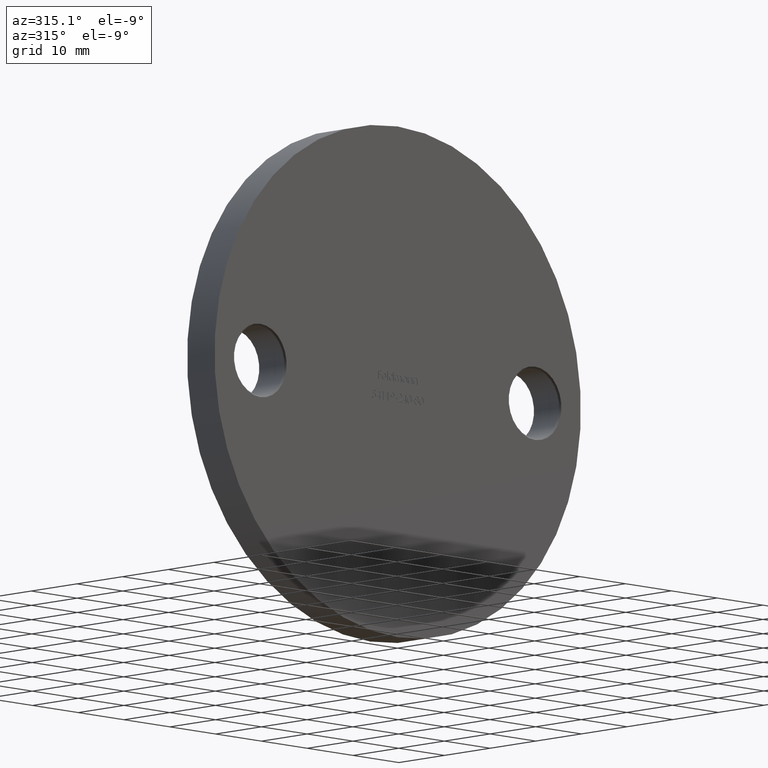
[diagram: clean part render]
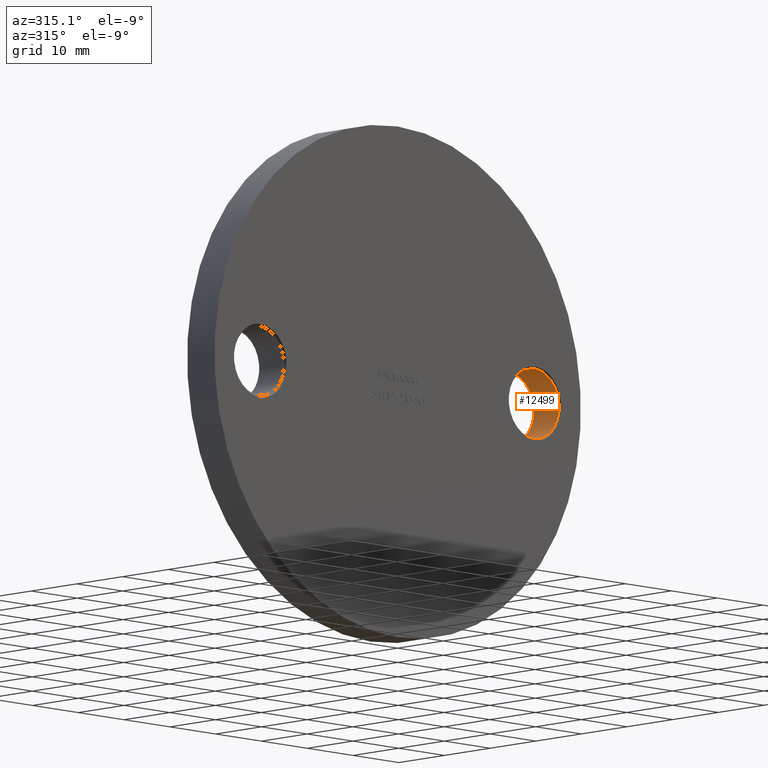
[diagram: same view with one face highlighted and labeled with its STEP entity id]
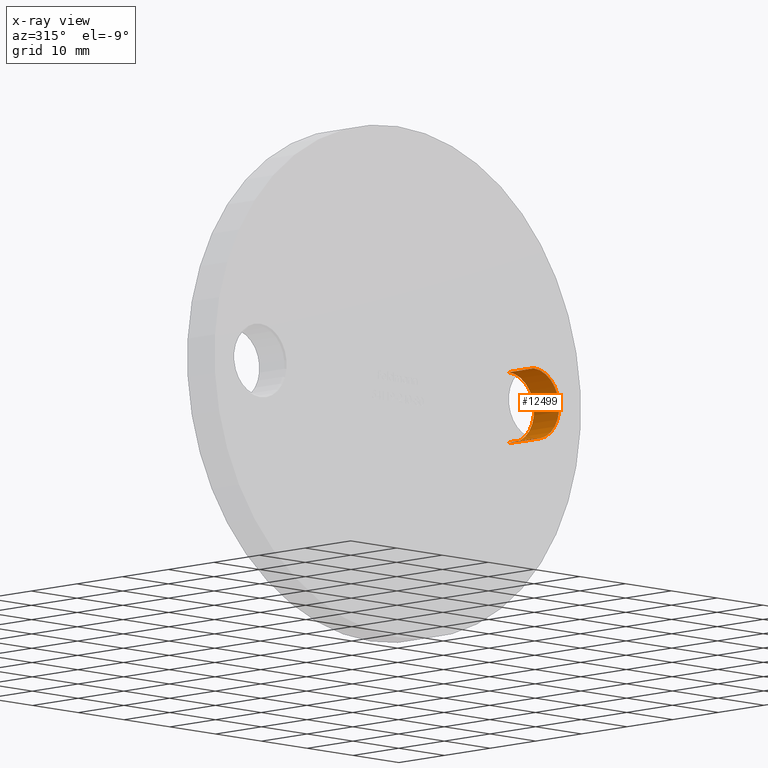
[diagram: x-ray of the same camera — body ghosted, the highlighted face saturated]
A machine part, auxiliary view. The second image highlights one B-rep face of the part: STEP entity #12499.
The next image is the same camera in x-ray: the body ghosted, the highlighted face saturated — about 0% of this face is hidden behind the body in this view.
In plain terms, the highlighted cylindrical surface (edge-blend (fillet) strip) has radius 5.5 mm, axis along (-0, -1, -0).
Its self-contained STEP definition (entity closure, byte-faithful):
#353 = VERTEX_POINT ( 'NONE', #8498 ) ;
#994 = CARTESIAN_POINT ( 'NONE',  ( 30.00000000000000000, 5.750000000000000000, 5.499999999999989342 ) ) ;
#1462 = DIRECTION ( 'NONE',  ( -0.000000000000000000, -1.000000000000000000, -0.000000000000000000 ) ) ;
#1721 = VECTOR ( 'NONE', #5926, 1000.000000000000000 ) ;
#1853 = EDGE_CURVE ( 'NONE', #11055, #11264, #4754, .T. ) ;
#2349 = AXIS2_PLACEMENT_3D ( 'NONE', #4536, #9963, #2450 ) ;
#2450 = DIRECTION ( 'NONE',  ( 0.000000000000000000, 0.000000000000000000, 1.000000000000000000 ) ) ;
#2541 = EDGE_CURVE ( 'NONE', #11264, #4739, #7708, .T. ) ;
#2552 = CARTESIAN_POINT ( 'NONE',  ( 30.00000000000000000, 6.000000000000000000, -5.500000000000003553 ) ) ;
#2889 = ORIENTED_EDGE ( 'NONE', *, *, #2541, .T. ) ;
#2935 = ORIENTED_EDGE ( 'NONE', *, *, #1853, .T. ) ;
#3346 = CARTESIAN_POINT ( 'NONE',  ( 30.00000000000000000, 0.2500000000000036637, -5.500000000000003553 ) ) ;
#3421 = LINE ( 'NONE', #4569, #8914 ) ;
#3642 = CYLINDRICAL_SURFACE ( 'NONE', #8600, 5.499999999999996447 ) ;
#3687 = ORIENTED_EDGE ( 'NONE', *, *, #7479, .T. ) ;
#4536 = CARTESIAN_POINT ( 'NONE',  ( 30.00000000000000000, 0.2500000000000036637, -7.347880794884118356E-15 ) ) ;
#4569 = CARTESIAN_POINT ( 'NONE',  ( 30.00000000000000000, 6.000000000000000000, 5.499999999999989342 ) ) ;
#4625 = EDGE_CURVE ( 'NONE', #11055, #353, #3421, .T. ) ;
#4739 = VERTEX_POINT ( 'NONE', #3346 ) ;
#4754 = CIRCLE ( 'NONE', #10941, 5.499999999999996447 ) ;
#5837 = DIRECTION ( 'NONE',  ( 0.000000000000000000, 0.000000000000000000, -1.000000000000000000 ) ) ;
#5926 = DIRECTION ( 'NONE',  ( -0.000000000000000000, -1.000000000000000000, -0.000000000000000000 ) ) ;
#5980 = CARTESIAN_POINT ( 'NONE',  ( 30.00000000000000000, 6.000000000000000000, -7.347880794884118356E-15 ) ) ;
#6695 = DIRECTION ( 'NONE',  ( 0.000000000000000000, 1.000000000000000000, 0.000000000000000000 ) ) ;
#7479 = EDGE_CURVE ( 'NONE', #4739, #353, #13312, .T. ) ;
#7708 = LINE ( 'NONE', #2552, #1721 ) ;
#8040 = DIRECTION ( 'NONE',  ( 0.000000000000000000, 0.000000000000000000, 1.000000000000000000 ) ) ;
#8498 = CARTESIAN_POINT ( 'NONE',  ( 30.00000000000000000, 0.2500000000000036637, 5.499999999999989342 ) ) ;
#8600 = AXIS2_PLACEMENT_3D ( 'NONE', #5980, #1462, #5837 ) ;
#8914 = VECTOR ( 'NONE', #9044, 1000.000000000000000 ) ;
#9044 = DIRECTION ( 'NONE',  ( -0.000000000000000000, -1.000000000000000000, -0.000000000000000000 ) ) ;
#9963 = DIRECTION ( 'NONE',  ( -0.000000000000000000, -1.000000000000000000, -0.000000000000000000 ) ) ;
#10933 = ORIENTED_EDGE ( 'NONE', *, *, #4625, .F. ) ;
#10941 = AXIS2_PLACEMENT_3D ( 'NONE', #13246, #6695, #8040 ) ;
#11055 = VERTEX_POINT ( 'NONE', #994 ) ;
#11264 = VERTEX_POINT ( 'NONE', #12124 ) ;
#11350 = FACE_OUTER_BOUND ( 'NONE', #13240, .T. ) ;
#12124 = CARTESIAN_POINT ( 'NONE',  ( 30.00000000000000000, 5.750000000000000000, -5.500000000000003553 ) ) ;
#12499 = ADVANCED_FACE ( 'NONE', ( #11350 ), #3642, .F. ) ;
#13240 = EDGE_LOOP ( 'NONE', ( #10933, #2935, #2889, #3687 ) ) ;
#13246 = CARTESIAN_POINT ( 'NONE',  ( 30.00000000000000000, 5.750000000000000000, -7.347880794884118356E-15 ) ) ;
#13312 = CIRCLE ( 'NONE', #2349, 5.499999999999996447 ) ;